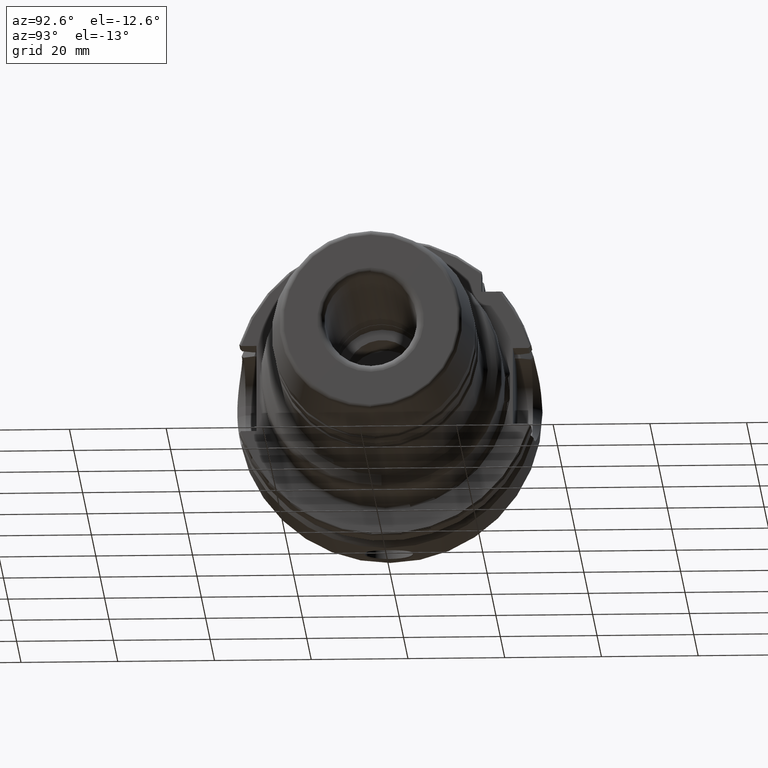
[diagram: clean part render]
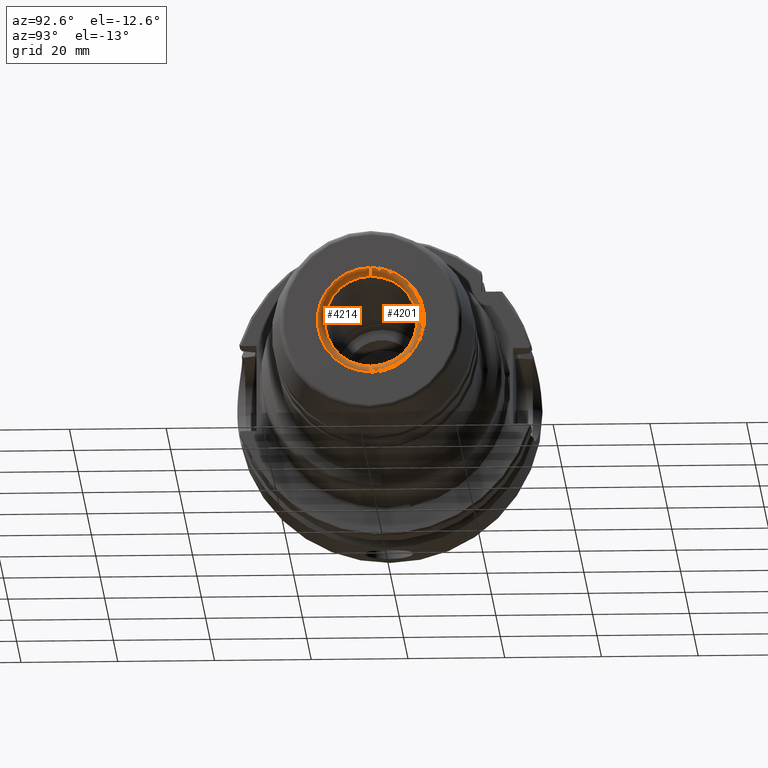
[diagram: same view with one multi-face feature highlighted, each face labeled with its STEP entity id]
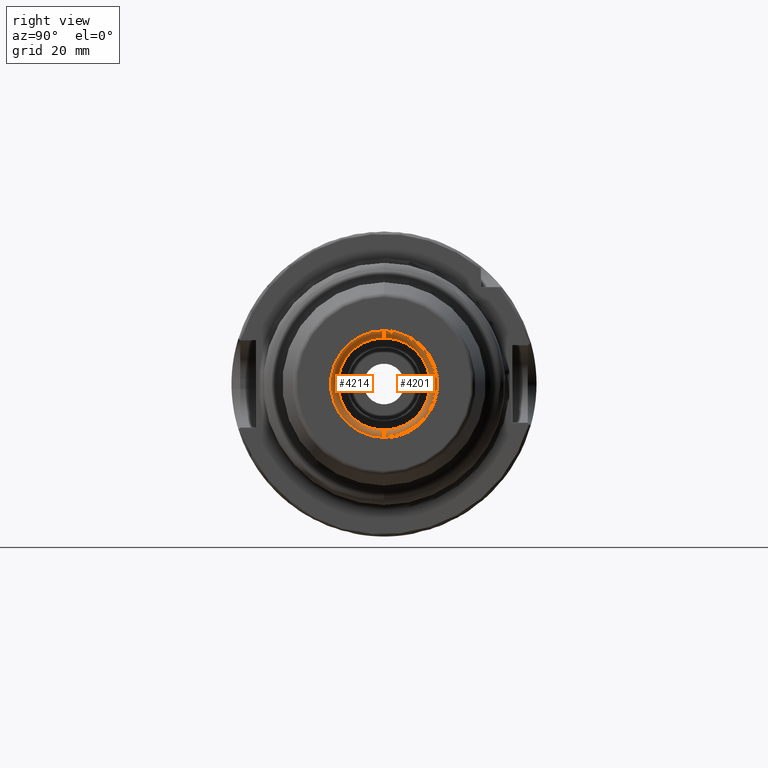
[diagram: same view with one multi-face feature highlighted, each face labeled with its STEP entity id]
A machine part, auxiliary view. The highlighted faces form ONE feature: a constant-radius fillet chain: 2 tangent blend faces with common blend radius 1.5 mm. The faces share edges in the B-rep.
A second angle (right view) of the same feature is appended — it is thin or edge-on in the first view.
Their STEP definitions:
[1] entity #4201 (Torus):
#553=CARTESIAN_POINT('',(8.85E1,0.E0,0.E0));
#554=DIRECTION('',(1.E0,0.E0,0.E0));
#555=DIRECTION('',(0.E0,0.E0,-1.E0));
#556=AXIS2_PLACEMENT_3D('',#553,#554,#555);
#558=CARTESIAN_POINT('',(8.85E1,0.E0,-1.1025E1));
#559=DIRECTION('',(0.E0,1.E0,0.E0));
#560=DIRECTION('',(0.E0,0.E0,1.E0));
#561=AXIS2_PLACEMENT_3D('',#558,#559,#560);
#563=CARTESIAN_POINT('',(8.85E1,0.E0,1.1025E1));
#564=DIRECTION('',(0.E0,-1.E0,0.E0));
#565=DIRECTION('',(0.E0,0.E0,-1.E0));
#566=AXIS2_PLACEMENT_3D('',#563,#564,#565);
#573=CARTESIAN_POINT('',(9.E1,0.E0,0.E0));
#574=DIRECTION('',(1.E0,0.E0,0.E0));
#575=DIRECTION('',(0.E0,0.E0,-1.E0));
#576=AXIS2_PLACEMENT_3D('',#573,#574,#575);
#3383=CARTESIAN_POINT('',(8.85E1,0.E0,-9.525E0));
#3384=VERTEX_POINT('',#3383);
#3385=CARTESIAN_POINT('',(9.E1,0.E0,-1.1025E1));
#3386=VERTEX_POINT('',#3385);
#3443=CARTESIAN_POINT('',(8.85E1,0.E0,9.525E0));
#3444=VERTEX_POINT('',#3443);
#3445=CARTESIAN_POINT('',(9.E1,0.E0,1.1025E1));
#3446=VERTEX_POINT('',#3445);
#4187=CARTESIAN_POINT('',(8.85E1,0.E0,0.E0));
#4188=DIRECTION('',(1.E0,0.E0,0.E0));
#4189=DIRECTION('',(0.E0,0.E0,1.E0));
#4190=AXIS2_PLACEMENT_3D('',#4187,#4188,#4189);
#4191=TOROIDAL_SURFACE('',#4190,1.1025E1,1.5E0);
#4193=ORIENTED_EDGE('',*,*,#4192,.F.);
#4194=ORIENTED_EDGE('',*,*,#4182,.T.);
#4196=ORIENTED_EDGE('',*,*,#4195,.T.);
#4198=ORIENTED_EDGE('',*,*,#4197,.F.);
#4199=EDGE_LOOP('',(#4193,#4194,#4196,#4198));
#4200=FACE_OUTER_BOUND('',#4199,.F.);
#4201=ADVANCED_FACE('',(#4200),#4191,.T.);
#557=CIRCLE('',#556,9.525E0);
#562=CIRCLE('',#561,1.5E0);
#567=CIRCLE('',#566,1.5E0);
#577=CIRCLE('',#576,1.1025E1);
#4182=EDGE_CURVE('',#3384,#3444,#557,.T.);
#4192=EDGE_CURVE('',#3384,#3386,#562,.T.);
#4195=EDGE_CURVE('',#3444,#3446,#567,.T.);
#4197=EDGE_CURVE('',#3386,#3446,#577,.T.);
[2] entity #4214 (Torus):
#558=CARTESIAN_POINT('',(8.85E1,0.E0,-1.1025E1));
#559=DIRECTION('',(0.E0,1.E0,0.E0));
#560=DIRECTION('',(0.E0,0.E0,1.E0));
#561=AXIS2_PLACEMENT_3D('',#558,#559,#560);
#563=CARTESIAN_POINT('',(8.85E1,0.E0,1.1025E1));
#564=DIRECTION('',(0.E0,-1.E0,0.E0));
#565=DIRECTION('',(0.E0,0.E0,-1.E0));
#566=AXIS2_PLACEMENT_3D('',#563,#564,#565);
#568=CARTESIAN_POINT('',(8.85E1,0.E0,0.E0));
#569=DIRECTION('',(-1.E0,0.E0,0.E0));
#570=DIRECTION('',(0.E0,0.E0,-1.E0));
#571=AXIS2_PLACEMENT_3D('',#568,#569,#570);
#578=CARTESIAN_POINT('',(9.E1,0.E0,0.E0));
#579=DIRECTION('',(-1.E0,0.E0,0.E0));
#580=DIRECTION('',(0.E0,0.E0,-1.E0));
#581=AXIS2_PLACEMENT_3D('',#578,#579,#580);
#3383=CARTESIAN_POINT('',(8.85E1,0.E0,-9.525E0));
#3384=VERTEX_POINT('',#3383);
#3385=CARTESIAN_POINT('',(9.E1,0.E0,-1.1025E1));
#3386=VERTEX_POINT('',#3385);
#3443=CARTESIAN_POINT('',(8.85E1,0.E0,9.525E0));
#3444=VERTEX_POINT('',#3443);
#3445=CARTESIAN_POINT('',(9.E1,0.E0,1.1025E1));
#3446=VERTEX_POINT('',#3445);
#4202=CARTESIAN_POINT('',(8.85E1,0.E0,0.E0));
#4203=DIRECTION('',(1.E0,0.E0,0.E0));
#4204=DIRECTION('',(0.E0,0.E0,1.E0));
#4205=AXIS2_PLACEMENT_3D('',#4202,#4203,#4204);
#4206=TOROIDAL_SURFACE('',#4205,1.1025E1,1.5E0);
#4207=ORIENTED_EDGE('',*,*,#4192,.T.);
#4209=ORIENTED_EDGE('',*,*,#4208,.T.);
#4210=ORIENTED_EDGE('',*,*,#4195,.F.);
#4211=ORIENTED_EDGE('',*,*,#4166,.F.);
#4212=EDGE_LOOP('',(#4207,#4209,#4210,#4211));
#4213=FACE_OUTER_BOUND('',#4212,.F.);
#4214=ADVANCED_FACE('',(#4213),#4206,.T.);
#562=CIRCLE('',#561,1.5E0);
#567=CIRCLE('',#566,1.5E0);
#572=CIRCLE('',#571,9.525E0);
#582=CIRCLE('',#581,1.1025E1);
#4166=EDGE_CURVE('',#3384,#3444,#572,.T.);
#4192=EDGE_CURVE('',#3384,#3386,#562,.T.);
#4195=EDGE_CURVE('',#3444,#3446,#567,.T.);
#4208=EDGE_CURVE('',#3386,#3446,#582,.T.);